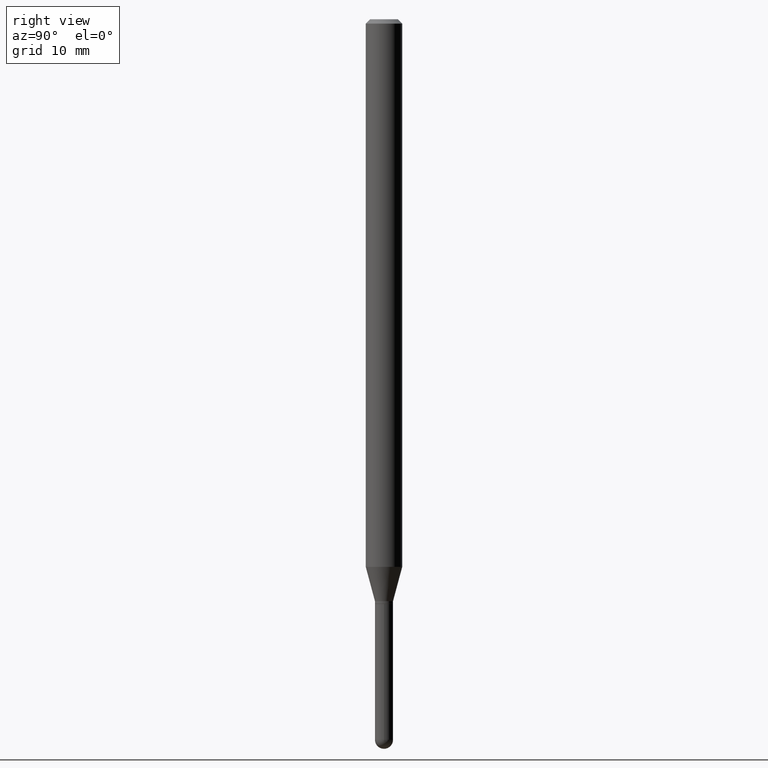
[diagram: clean part render]
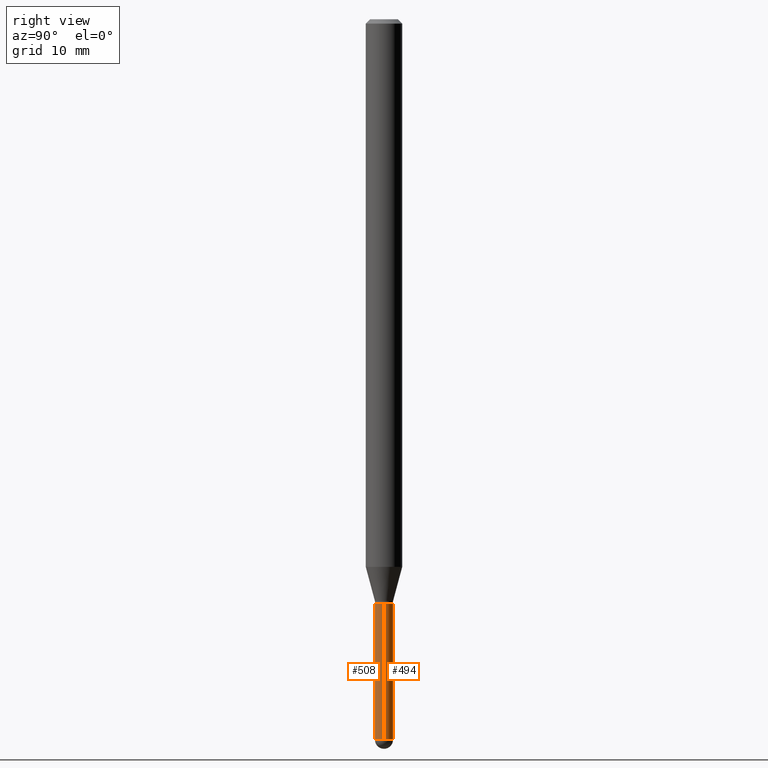
[diagram: same view with one multi-face feature highlighted, each face labeled with its STEP entity id]
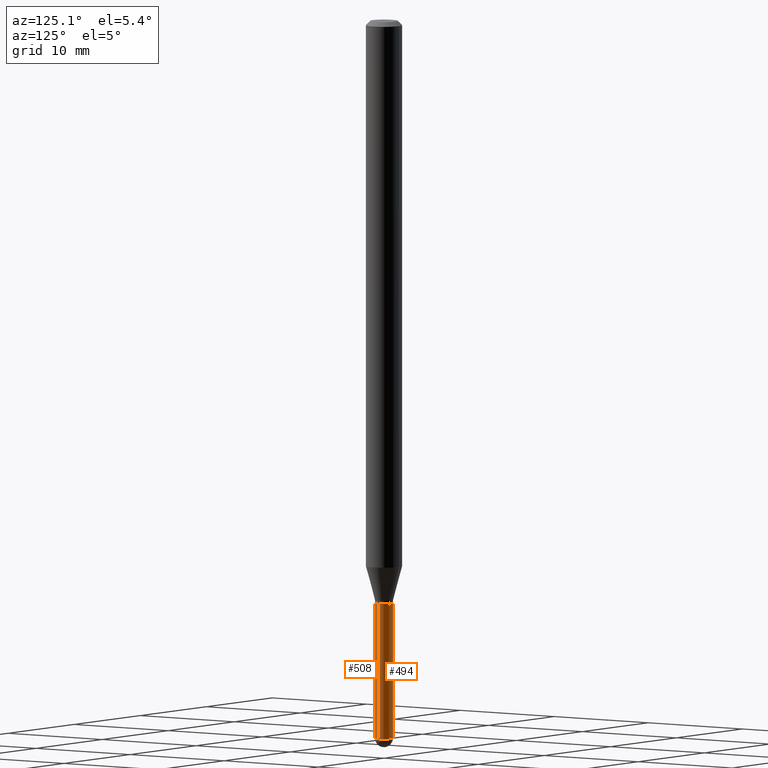
[diagram: same view with one multi-face feature highlighted, each face labeled with its STEP entity id]
A machine part, right view. The highlighted faces form ONE feature: a constant-radius fillet chain: 2 tangent blend faces with common blend radius 0.7874 mm. The faces share edges in the B-rep.
A second angle (auxiliary view) of the same feature is appended — it is thin or edge-on in the first view.
Their STEP definitions:
[1] entity #494 (Cylinder):
#14 = DIRECTION ( 'NONE',  ( 1.000000000000000000, -6.982962677686270655E-15, 0.000000000000000000 ) ) ;
#31 = CARTESIAN_POINT ( 'NONE',  ( 0.03099999999999999978, -7.213400446049938314E-15, -2.004000000000000448 ) ) ;
#34 = VERTEX_POINT ( 'NONE', #81 ) ;
#36 = VERTEX_POINT ( 'NONE', #31 ) ;
#41 = ORIENTED_EDGE ( 'NONE', *, *, #454, .T. ) ;
#43 = DIRECTION ( 'NONE',  ( -2.445468806185136597E-29, 3.491481338843145583E-15, 1.000000000000000000 ) ) ;
#49 = EDGE_CURVE ( 'NONE', #36, #34, #271, .T. ) ;
#52 = VECTOR ( 'NONE', #448, 39.37007874015748143 ) ;
#53 = DIRECTION ( 'NONE',  ( -2.445468806185136597E-29, 3.491481338843145583E-15, 1.000000000000000000 ) ) ;
#61 = DIRECTION ( 'NONE',  ( -2.445468806185136597E-29, 3.491481338843145583E-15, 1.000000000000000000 ) ) ;
#75 = CARTESIAN_POINT ( 'NONE',  ( 4.900719487595014484E-29, -6.996928603041664772E-15, -2.004000000000000448 ) ) ;
#81 = CARTESIAN_POINT ( 'NONE',  ( -0.03099999999999999978, -7.588429766237065021E-15, -2.004000000000000448 ) ) ;
#86 = CIRCLE ( 'NONE', #433, 0.03099999999999999978 ) ;
#94 = CARTESIAN_POINT ( 'NONE',  ( 6.037862482471103495E-29, -8.620467425603728566E-15, -2.469000000000000306 ) ) ;
#114 = VERTEX_POINT ( 'NONE', #200 ) ;
#118 = EDGE_CURVE ( 'NONE', #190, #34, #204, .T. ) ;
#121 = CARTESIAN_POINT ( 'NONE',  ( 6.037862482471103495E-29, -8.620467425603728566E-15, -2.469000000000000306 ) ) ;
#122 = CARTESIAN_POINT ( 'NONE',  ( -0.03099999999999999978, 2.202682480856310560E-16, -1.524869877979020612E-30 ) ) ;
#145 = AXIS2_PLACEMENT_3D ( 'NONE', #75, #236, #160 ) ;
#153 = ORIENTED_EDGE ( 'NONE', *, *, #233, .F. ) ;
#160 = DIRECTION ( 'NONE',  ( 1.000000000000000000, -6.982962677686270655E-15, 0.000000000000000000 ) ) ;
#173 = CARTESIAN_POINT ( 'NONE',  ( -0.03099999999999999978, -7.588429766237065021E-15, -2.469000000000000306 ) ) ;
#190 = VERTEX_POINT ( 'NONE', #173 ) ;
#200 = CARTESIAN_POINT ( 'NONE',  ( 0.03099999999999999978, -8.025169857330971394E-15, -2.469000000000000306 ) ) ;
#204 = LINE ( 'NONE', #122, #52 ) ;
#216 = AXIS2_PLACEMENT_3D ( 'NONE', #94, #61, #14 ) ;
#230 = ORIENTED_EDGE ( 'NONE', *, *, #118, .T. ) ;
#233 = EDGE_CURVE ( 'NONE', #114, #36, #340, .T. ) ;
#236 = DIRECTION ( 'NONE',  ( -2.445468806185136597E-29, 3.491481338843145583E-15, 1.000000000000000000 ) ) ;
#240 = AXIS2_PLACEMENT_3D ( 'NONE', #410, #53, #370 ) ;
#251 = CYLINDRICAL_SURFACE ( 'NONE', #240, 0.03099999999999999978 ) ;
#254 = VECTOR ( 'NONE', #462, 39.37007874015748143 ) ;
#263 = EDGE_LOOP ( 'NONE', ( #41, #230, #389, #153, #353 ) ) ;
#271 = CIRCLE ( 'NONE', #145, 0.03099999999999999978 ) ;
#306 = CIRCLE ( 'NONE', #216, 0.03099999999999999978 ) ;
#313 = EDGE_CURVE ( 'NONE', #114, #351, #86, .T. ) ;
#340 = LINE ( 'NONE', #497, #254 ) ;
#351 = VERTEX_POINT ( 'NONE', #391 ) ;
#353 = ORIENTED_EDGE ( 'NONE', *, *, #313, .T. ) ;
#370 = DIRECTION ( 'NONE',  ( 1.000000000000000000, -6.982962677686266711E-15, 4.876176775795935232E-29 ) ) ;
#389 = ORIENTED_EDGE ( 'NONE', *, *, #49, .F. ) ;
#391 = CARTESIAN_POINT ( 'NONE',  ( 2.164718430083341860E-16, 0.03099999999999131575, -2.469000000000000306 ) ) ;
#410 = CARTESIAN_POINT ( 'NONE',  ( 0.000000000000000000, 0.000000000000000000, 0.000000000000000000 ) ) ;
#433 = AXIS2_PLACEMENT_3D ( 'NONE', #121, #43, #461 ) ;
#448 = DIRECTION ( 'NONE',  ( -2.445468806185136877E-29, 3.491481338843145188E-15, 1.000000000000000000 ) ) ;
#454 = EDGE_CURVE ( 'NONE', #351, #190, #306, .T. ) ;
#456 = FACE_OUTER_BOUND ( 'NONE', #263, .T. ) ;
#461 = DIRECTION ( 'NONE',  ( 1.000000000000000000, -6.982962677686270655E-15, 0.000000000000000000 ) ) ;
#462 = DIRECTION ( 'NONE',  ( -2.445468806185136877E-29, 3.491481338843145188E-15, 1.000000000000000000 ) ) ;
#494 = ADVANCED_FACE ( 'NONE', ( #456 ), #251, .T. ) ;
#497 = CARTESIAN_POINT ( 'NONE',  ( 0.03099999999999999978, -2.164718430082742572E-16, 1.511614800496739984E-30 ) ) ;
[2] entity #508 (Cylinder):
#25 = DIRECTION ( 'NONE',  ( 1.000000000000000000, -6.982962677686266711E-15, 4.876176775795935232E-29 ) ) ;
#31 = CARTESIAN_POINT ( 'NONE',  ( 0.03099999999999999978, -7.213400446049938314E-15, -2.004000000000000448 ) ) ;
#34 = VERTEX_POINT ( 'NONE', #81 ) ;
#36 = VERTEX_POINT ( 'NONE', #31 ) ;
#52 = VECTOR ( 'NONE', #448, 39.37007874015748143 ) ;
#68 = EDGE_CURVE ( 'NONE', #388, #114, #394, .T. ) ;
#71 = DIRECTION ( 'NONE',  ( 1.000000000000000000, -6.982962677686270655E-15, 0.000000000000000000 ) ) ;
#72 = ORIENTED_EDGE ( 'NONE', *, *, #302, .T. ) ;
#81 = CARTESIAN_POINT ( 'NONE',  ( -0.03099999999999999978, -7.588429766237065021E-15, -2.004000000000000448 ) ) ;
#109 = FACE_OUTER_BOUND ( 'NONE', #144, .T. ) ;
#111 = DIRECTION ( 'NONE',  ( -2.445468806185136597E-29, 3.491481338843145583E-15, 1.000000000000000000 ) ) ;
#114 = VERTEX_POINT ( 'NONE', #200 ) ;
#118 = EDGE_CURVE ( 'NONE', #190, #34, #204, .T. ) ;
#122 = CARTESIAN_POINT ( 'NONE',  ( -0.03099999999999999978, 2.202682480856310560E-16, -1.524869877979020612E-30 ) ) ;
#144 = EDGE_LOOP ( 'NONE', ( #314, #72, #475, #427, #187 ) ) ;
#146 = CIRCLE ( 'NONE', #495, 0.03099999999999999978 ) ;
#148 = CARTESIAN_POINT ( 'NONE',  ( 6.037862482471103495E-29, -8.620467425603728566E-15, -2.469000000000000306 ) ) ;
#173 = CARTESIAN_POINT ( 'NONE',  ( -0.03099999999999999978, -7.588429766237065021E-15, -2.469000000000000306 ) ) ;
#187 = ORIENTED_EDGE ( 'NONE', *, *, #341, .F. ) ;
#190 = VERTEX_POINT ( 'NONE', #173 ) ;
#193 = AXIS2_PLACEMENT_3D ( 'NONE', #148, #319, #441 ) ;
#200 = CARTESIAN_POINT ( 'NONE',  ( 0.03099999999999999978, -8.025169857330971394E-15, -2.469000000000000306 ) ) ;
#204 = LINE ( 'NONE', #122, #52 ) ;
#226 = DIRECTION ( 'NONE',  ( -2.445468806185136597E-29, 3.491481338843145583E-15, 1.000000000000000000 ) ) ;
#233 = EDGE_CURVE ( 'NONE', #114, #36, #340, .T. ) ;
#246 = CARTESIAN_POINT ( 'NONE',  ( -2.202682480855702151E-16, -0.03100000000000856237, -2.469000000000000306 ) ) ;
#249 = DIRECTION ( 'NONE',  ( -2.445468806185136597E-29, 3.491481338843145583E-15, 1.000000000000000000 ) ) ;
#254 = VECTOR ( 'NONE', #462, 39.37007874015748143 ) ;
#302 = EDGE_CURVE ( 'NONE', #190, #388, #315, .T. ) ;
#314 = ORIENTED_EDGE ( 'NONE', *, *, #118, .F. ) ;
#315 = CIRCLE ( 'NONE', #193, 0.03099999999999999978 ) ;
#319 = DIRECTION ( 'NONE',  ( -2.445468806185136597E-29, 3.491481338843145583E-15, 1.000000000000000000 ) ) ;
#340 = LINE ( 'NONE', #497, #254 ) ;
#341 = EDGE_CURVE ( 'NONE', #34, #36, #146, .T. ) ;
#346 = CARTESIAN_POINT ( 'NONE',  ( 0.000000000000000000, 0.000000000000000000, 0.000000000000000000 ) ) ;
#368 = AXIS2_PLACEMENT_3D ( 'NONE', #346, #226, #25 ) ;
#388 = VERTEX_POINT ( 'NONE', #246 ) ;
#394 = CIRCLE ( 'NONE', #421, 0.03099999999999999978 ) ;
#399 = DIRECTION ( 'NONE',  ( 1.000000000000000000, -6.982962677686270655E-15, 0.000000000000000000 ) ) ;
#421 = AXIS2_PLACEMENT_3D ( 'NONE', #485, #249, #399 ) ;
#427 = ORIENTED_EDGE ( 'NONE', *, *, #233, .T. ) ;
#429 = CYLINDRICAL_SURFACE ( 'NONE', #368, 0.03099999999999999978 ) ;
#441 = DIRECTION ( 'NONE',  ( 1.000000000000000000, -6.982962677686270655E-15, 0.000000000000000000 ) ) ;
#448 = DIRECTION ( 'NONE',  ( -2.445468806185136877E-29, 3.491481338843145188E-15, 1.000000000000000000 ) ) ;
#462 = DIRECTION ( 'NONE',  ( -2.445468806185136877E-29, 3.491481338843145188E-15, 1.000000000000000000 ) ) ;
#475 = ORIENTED_EDGE ( 'NONE', *, *, #68, .T. ) ;
#485 = CARTESIAN_POINT ( 'NONE',  ( 6.037862482471103495E-29, -8.620467425603728566E-15, -2.469000000000000306 ) ) ;
#495 = AXIS2_PLACEMENT_3D ( 'NONE', #506, #111, #71 ) ;
#497 = CARTESIAN_POINT ( 'NONE',  ( 0.03099999999999999978, -2.164718430082742572E-16, 1.511614800496739984E-30 ) ) ;
#506 = CARTESIAN_POINT ( 'NONE',  ( 4.900719487595014484E-29, -6.996928603041664772E-15, -2.004000000000000448 ) ) ;
#508 = ADVANCED_FACE ( 'NONE', ( #109 ), #429, .T. ) ;